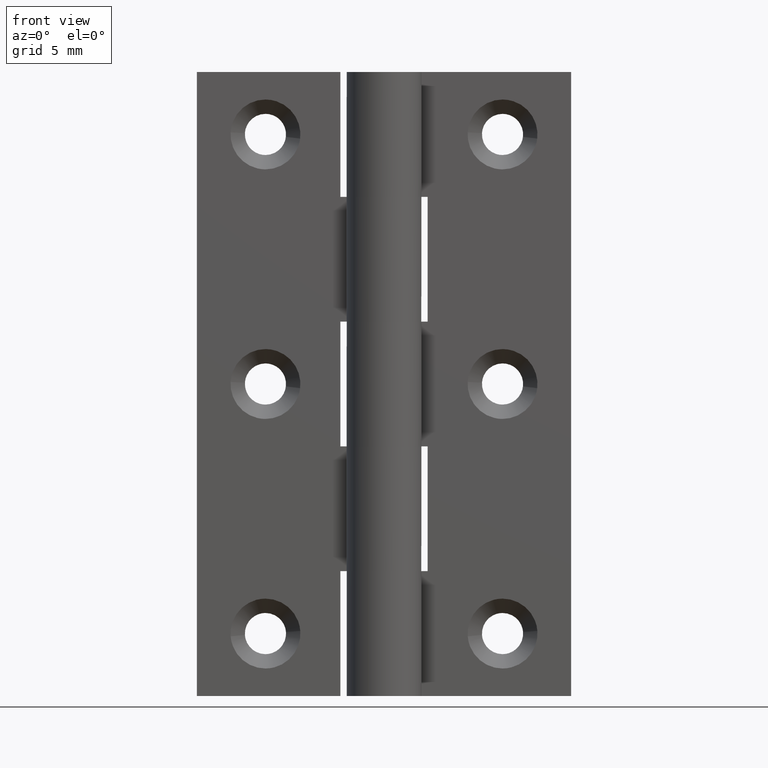
[diagram: clean part render]
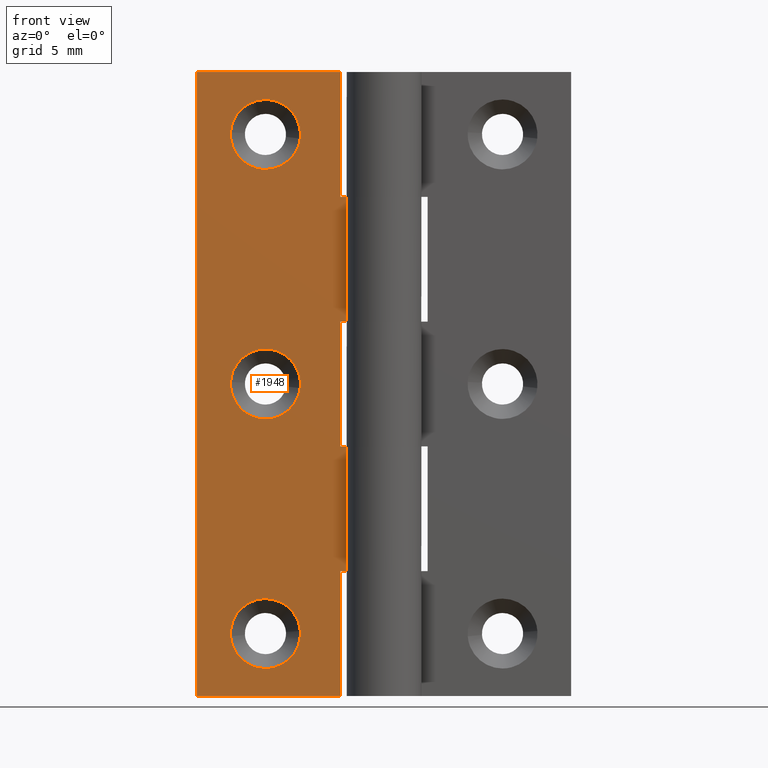
[diagram: same view with one face highlighted and labeled with its STEP entity id]
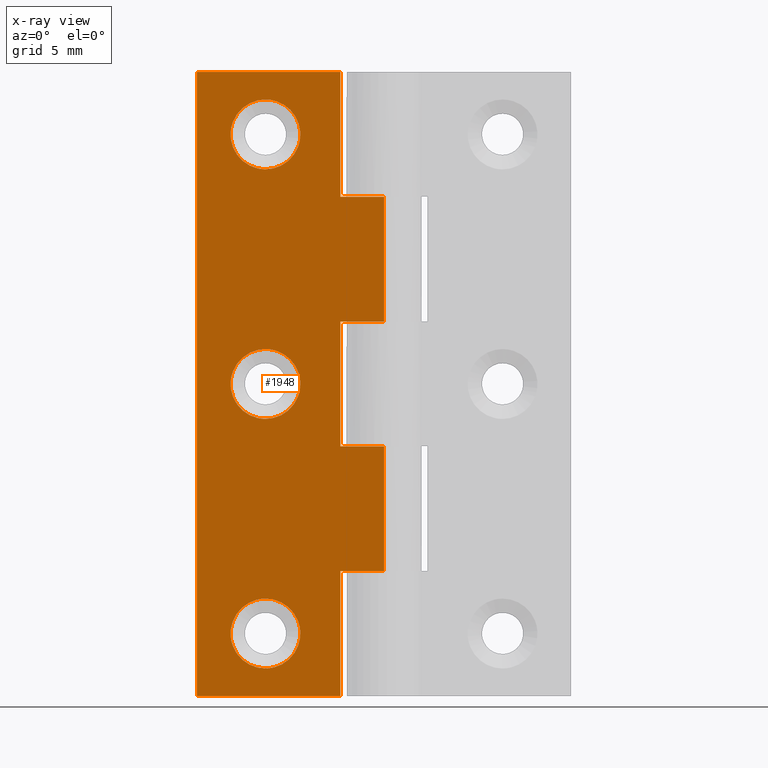
[diagram: x-ray of the same camera — body ghosted, the highlighted face saturated]
A machine part, front view. The second image highlights one B-rep face of the part: STEP entity #1948.
The next image is the same camera in x-ray: the body ghosted, the highlighted face saturated — about 0% of this face is hidden behind the body in this view.
In plain terms, the highlighted face is a freeform B-spline surface patch.
Its self-contained STEP definition (entity closure, byte-faithful):
#530=CARTESIAN_POINT('',(-6.719573326180795,1.499999999984184,24.669504142834970));
#531=VERTEX_POINT('',#530);
#537=CARTESIAN_POINT('',(-9.500000000000000,1.500000000000000,27.800000000000001));
#538=VERTEX_POINT('',#537);
#539=CARTESIAN_POINT('',(-6.719573326180795,1.499999999984184,24.669504142834974));
#540=CARTESIAN_POINT('',(-6.700000000000000,1.500000000000000,24.834172464849100));
#541=CARTESIAN_POINT('',(-6.699999999999999,1.500000000000000,25.0));
#542=CARTESIAN_POINT('',(-6.700000000000000,1.500000000000000,27.800000000000004));
#543=CARTESIAN_POINT('',(-9.500000000000000,1.500000000000000,27.800000000000001));
#551=(BOUNDED_CURVE()B_SPLINE_CURVE(2,(#539,#540,#541,#542,#543),.UNSPECIFIED.,.F.,.U.)B_SPLINE_CURVE_WITH_KNOTS((3,2,3),(0.229562473500541,0.250000000000000,0.500000000000000),.UNSPECIFIED.)CURVE()GEOMETRIC_REPRESENTATION_ITEM()RATIONAL_B_SPLINE_CURVE((0.956026754158283,0.976055948315953,1.0,0.707106781186547,1.0))REPRESENTATION_ITEM(''));
#552=EDGE_CURVE('',#531,#538,#551,.T.);
#554=CARTESIAN_POINT('',(-12.294777435600221,1.499999999964778,25.170935910964008));
#555=VERTEX_POINT('',#554);
#556=CARTESIAN_POINT('',(-9.500000000000000,1.500000000000000,27.800000000000001));
#557=CARTESIAN_POINT('',(-12.133976986836901,1.500000000000000,27.800000000000008));
#558=CARTESIAN_POINT('',(-12.294777435600222,1.499999999964778,25.170935910964015));
#566=(BOUNDED_CURVE()B_SPLINE_CURVE(2,(#556,#557,#558),.UNSPECIFIED.,.F.,.U.)B_SPLINE_CURVE_WITH_KNOTS((3,3),(0.500000000000000,0.739332962209338),.UNSPECIFIED.)CURVE()GEOMETRIC_REPRESENTATION_ITEM()RATIONAL_B_SPLINE_CURVE((1.0,0.719603993321395,0.976072041603268))REPRESENTATION_ITEM(''));
#567=EDGE_CURVE('',#538,#555,#566,.T.);
#601=CARTESIAN_POINT('',(-9.500000000000000,1.500000000000000,22.199999999999999));
#602=VERTEX_POINT('',#601);
#603=CARTESIAN_POINT('',(-12.294777435600224,1.499999999964778,25.170935910964008));
#604=CARTESIAN_POINT('',(-12.300000000000004,1.500000000000000,25.085547737501052));
#605=CARTESIAN_POINT('',(-12.300000000000001,1.500000000000000,25.0));
#606=CARTESIAN_POINT('',(-12.300000000000002,1.500000000000000,22.200000000000010));
#607=CARTESIAN_POINT('',(-9.500000000000000,1.500000000000000,22.199999999999999));
#615=(BOUNDED_CURVE()B_SPLINE_CURVE(2,(#603,#604,#605,#606,#607),.UNSPECIFIED.,.F.,.U.)B_SPLINE_CURVE_WITH_KNOTS((3,2,3),(0.739332962209338,0.750000000000000,1.0),.UNSPECIFIED.)CURVE()GEOMETRIC_REPRESENTATION_ITEM()RATIONAL_B_SPLINE_CURVE((0.976072041603268,0.987502787865153,1.0,0.707106781186547,1.0))REPRESENTATION_ITEM(''));
#616=EDGE_CURVE('',#555,#602,#615,.T.);
#618=CARTESIAN_POINT('',(-9.500000000000000,1.500000000000000,22.199999999999999));
#619=CARTESIAN_POINT('',(-7.013111327559976,1.500000000000000,22.200000000000010));
#620=CARTESIAN_POINT('',(-6.719573326180796,1.499999999984183,24.669504142834981));
#628=(BOUNDED_CURVE()B_SPLINE_CURVE(2,(#618,#619,#620),.UNSPECIFIED.,.F.,.U.)B_SPLINE_CURVE_WITH_KNOTS((3,3),(0.0,0.229562473500541),.UNSPECIFIED.)CURVE()GEOMETRIC_REPRESENTATION_ITEM()RATIONAL_B_SPLINE_CURVE((1.0,0.731050832870594,0.956026754158283))REPRESENTATION_ITEM(''));
#629=EDGE_CURVE('',#602,#531,#628,.T.);
#874=CARTESIAN_POINT('',(-6.719573326180794,1.499999999984183,44.669504142834967));
#875=VERTEX_POINT('',#874);
#881=CARTESIAN_POINT('',(-9.500000000000000,1.500000000000000,47.799999999999997));
#882=VERTEX_POINT('',#881);
#883=CARTESIAN_POINT('',(-6.719573326180795,1.499999999984183,44.669504142834974));
#884=CARTESIAN_POINT('',(-6.699999999999999,1.500000000000000,44.834172464849104));
#885=CARTESIAN_POINT('',(-6.699999999999999,1.500000000000000,45.0));
#886=CARTESIAN_POINT('',(-6.700000000000000,1.500000000000000,47.799999999999997));
#887=CARTESIAN_POINT('',(-9.500000000000000,1.500000000000000,47.799999999999997));
#895=(BOUNDED_CURVE()B_SPLINE_CURVE(2,(#883,#884,#885,#886,#887),.UNSPECIFIED.,.F.,.U.)B_SPLINE_CURVE_WITH_KNOTS((3,2,3),(0.229562473500542,0.250000000000000,0.500000000000000),.UNSPECIFIED.)CURVE()GEOMETRIC_REPRESENTATION_ITEM()RATIONAL_B_SPLINE_CURVE((0.956026754158284,0.976055948315954,1.0,0.707106781186547,1.0))REPRESENTATION_ITEM(''));
#896=EDGE_CURVE('',#875,#882,#895,.T.);
#898=CARTESIAN_POINT('',(-12.294777435600221,1.499999999964778,45.170935910964012));
#899=VERTEX_POINT('',#898);
#900=CARTESIAN_POINT('',(-9.500000000000000,1.500000000000000,47.799999999999997));
#901=CARTESIAN_POINT('',(-12.133976986836901,1.500000000000000,47.800000000000018));
#902=CARTESIAN_POINT('',(-12.294777435600222,1.499999999964778,45.170935910964005));
#910=(BOUNDED_CURVE()B_SPLINE_CURVE(2,(#900,#901,#902),.UNSPECIFIED.,.F.,.U.)B_SPLINE_CURVE_WITH_KNOTS((3,3),(0.500000000000000,0.739332962209338),.UNSPECIFIED.)CURVE()GEOMETRIC_REPRESENTATION_ITEM()RATIONAL_B_SPLINE_CURVE((1.0,0.719603993321395,0.976072041603268))REPRESENTATION_ITEM(''));
#911=EDGE_CURVE('',#882,#899,#910,.T.);
#945=CARTESIAN_POINT('',(-9.500000000000000,1.500000000000000,42.200000000000003));
#946=VERTEX_POINT('',#945);
#947=CARTESIAN_POINT('',(-12.294777435600219,1.499999999964779,45.170935910964005));
#948=CARTESIAN_POINT('',(-12.300000000000001,1.500000000000000,45.085547737501045));
#949=CARTESIAN_POINT('',(-12.300000000000001,1.500000000000000,45.0));
#950=CARTESIAN_POINT('',(-12.300000000000002,1.500000000000000,42.199999999999996));
#951=CARTESIAN_POINT('',(-9.500000000000000,1.500000000000000,42.200000000000003));
#959=(BOUNDED_CURVE()B_SPLINE_CURVE(2,(#947,#948,#949,#950,#951),.UNSPECIFIED.,.F.,.U.)B_SPLINE_CURVE_WITH_KNOTS((3,2,3),(0.739332962209338,0.750000000000000,1.0),.UNSPECIFIED.)CURVE()GEOMETRIC_REPRESENTATION_ITEM()RATIONAL_B_SPLINE_CURVE((0.976072041603270,0.987502787865154,1.0,0.707106781186547,1.0))REPRESENTATION_ITEM(''));
#960=EDGE_CURVE('',#899,#946,#959,.T.);
#962=CARTESIAN_POINT('',(-9.500000000000000,1.500000000000000,42.200000000000003));
#963=CARTESIAN_POINT('',(-7.013111327559967,1.500000000000000,42.200000000000003));
#964=CARTESIAN_POINT('',(-6.719573326180794,1.499999999984184,44.669504142834981));
#972=(BOUNDED_CURVE()B_SPLINE_CURVE(2,(#962,#963,#964),.UNSPECIFIED.,.F.,.U.)B_SPLINE_CURVE_WITH_KNOTS((3,3),(0.0,0.229562473500542),.UNSPECIFIED.)CURVE()GEOMETRIC_REPRESENTATION_ITEM()RATIONAL_B_SPLINE_CURVE((1.0,0.731050832870593,0.956026754158285))REPRESENTATION_ITEM(''));
#973=EDGE_CURVE('',#946,#875,#972,.T.);
#1203=CARTESIAN_POINT('',(-6.708631465537128,1.499999999974804,5.219685468230582));
#1204=VERTEX_POINT('',#1203);
#1210=CARTESIAN_POINT('',(-9.500000000000000,1.500000000000000,7.800000000000000));
#1211=VERTEX_POINT('',#1210);
#1212=CARTESIAN_POINT('',(-9.500000000000000,1.500000000000000,7.800000000000000));
#1213=CARTESIAN_POINT('',(-6.911706623711654,1.500000000000000,7.800000000000000));
#1214=CARTESIAN_POINT('',(-6.708631465537128,1.499999999974805,5.219685468230583));
#1222=(BOUNDED_CURVE()B_SPLINE_CURVE(2,(#1212,#1213,#1214),.UNSPECIFIED.,.F.,.U.)B_SPLINE_CURVE_WITH_KNOTS((3,3),(0.0,0.236331300609352),.UNSPECIFIED.)CURVE()GEOMETRIC_REPRESENTATION_ITEM()RATIONAL_B_SPLINE_CURVE((1.0,0.723120658632629,0.969723356122949))REPRESENTATION_ITEM(''));
#1223=EDGE_CURVE('',#1211,#1204,#1222,.T.);
#1225=CARTESIAN_POINT('',(-12.291368534462871,1.499999999974805,4.780314531769419));
#1226=VERTEX_POINT('',#1225);
#1227=CARTESIAN_POINT('',(-12.291368534462871,1.499999999974804,4.780314531769419));
#1228=CARTESIAN_POINT('',(-12.300000000000006,1.500000000000000,4.889987700187003));
#1229=CARTESIAN_POINT('',(-12.300000000000001,1.500000000000000,5.0));
#1230=CARTESIAN_POINT('',(-12.300000000000002,1.500000000000000,7.799999999999999));
#1231=CARTESIAN_POINT('',(-9.500000000000000,1.500000000000000,7.800000000000000));
#1239=(BOUNDED_CURVE()B_SPLINE_CURVE(2,(#1227,#1228,#1229,#1230,#1231),.UNSPECIFIED.,.F.,.U.)B_SPLINE_CURVE_WITH_KNOTS((3,2,3),(0.736331300609352,0.750000000000000,1.0),.UNSPECIFIED.)CURVE()GEOMETRIC_REPRESENTATION_ITEM()RATIONAL_B_SPLINE_CURVE((0.969723356122950,0.983986122553918,1.0,0.707106781186547,1.0))REPRESENTATION_ITEM(''));
#1240=EDGE_CURVE('',#1226,#1211,#1239,.T.);
#1277=CARTESIAN_POINT('',(-9.500000000000000,1.500000000000000,2.200000000000000));
#1278=VERTEX_POINT('',#1277);
#1279=CARTESIAN_POINT('',(-9.500000000000000,1.500000000000000,2.200000000000000));
#1280=CARTESIAN_POINT('',(-12.088293376288345,1.500000000000000,2.200000000000000));
#1281=CARTESIAN_POINT('',(-12.291368534462869,1.499999999974804,4.780314531769419));
#1289=(BOUNDED_CURVE()B_SPLINE_CURVE(2,(#1279,#1280,#1281),.UNSPECIFIED.,.F.,.U.)B_SPLINE_CURVE_WITH_KNOTS((3,3),(0.500000000000000,0.736331300609351),.UNSPECIFIED.)CURVE()GEOMETRIC_REPRESENTATION_ITEM()RATIONAL_B_SPLINE_CURVE((1.0,0.723120658632630,0.969723356122949))REPRESENTATION_ITEM(''));
#1290=EDGE_CURVE('',#1278,#1226,#1289,.T.);
#1292=CARTESIAN_POINT('',(-6.708631465537128,1.499999999974805,5.219685468230582));
#1293=CARTESIAN_POINT('',(-6.699999999999999,1.500000000000000,5.110012299812999));
#1294=CARTESIAN_POINT('',(-6.699999999999999,1.500000000000000,5.0));
#1295=CARTESIAN_POINT('',(-6.700000000000000,1.500000000000000,2.200000000000001));
#1296=CARTESIAN_POINT('',(-9.500000000000000,1.500000000000000,2.200000000000000));
#1304=(BOUNDED_CURVE()B_SPLINE_CURVE(2,(#1292,#1293,#1294,#1295,#1296),.UNSPECIFIED.,.F.,.U.)B_SPLINE_CURVE_WITH_KNOTS((3,2,3),(0.236331300609352,0.250000000000000,0.500000000000000),.UNSPECIFIED.)CURVE()GEOMETRIC_REPRESENTATION_ITEM()RATIONAL_B_SPLINE_CURVE((0.969723356122950,0.983986122553918,1.0,0.707106781186547,1.0))REPRESENTATION_ITEM(''));
#1305=EDGE_CURVE('',#1204,#1278,#1304,.T.);
#1316=CARTESIAN_POINT('',(-3.500000000000000,1.499999999999946,50.0));
#1317=VERTEX_POINT('',#1316);
#1318=CARTESIAN_POINT('',(-3.500000000000000,1.499999999999946,40.0));
#1319=VERTEX_POINT('',#1318);
#1320=CARTESIAN_POINT('',(-3.500000000000000,1.499999999999946,50.0));
#1321=CARTESIAN_POINT('',(-3.500000000000000,1.499999999999946,40.0));
#1322=QUASI_UNIFORM_CURVE('',1,(#1320,#1321),.UNSPECIFIED.,.F.,.U.);
#1323=EDGE_CURVE('',#1317,#1319,#1322,.T.);
#1360=CARTESIAN_POINT('',(-2.940072E-015,1.500000000000000,40.0));
#1361=VERTEX_POINT('',#1360);
#1362=CARTESIAN_POINT('',(-3.500000000000000,1.499999999999946,40.0));
#1363=CARTESIAN_POINT('',(-2.940072E-015,1.500000000000000,40.0));
#1364=QUASI_UNIFORM_CURVE('',1,(#1362,#1363),.UNSPECIFIED.,.F.,.U.);
#1365=EDGE_CURVE('',#1319,#1361,#1364,.T.);
#1422=CARTESIAN_POINT('',(-3.500000000000000,1.499999999999946,30.0));
#1423=VERTEX_POINT('',#1422);
#1424=CARTESIAN_POINT('',(-3.500000000000000,1.499999999999946,20.0));
#1425=VERTEX_POINT('',#1424);
#1426=CARTESIAN_POINT('',(-3.500000000000000,1.499999999999946,30.0));
#1427=CARTESIAN_POINT('',(-3.500000000000000,1.499999999999946,20.0));
#1428=QUASI_UNIFORM_CURVE('',1,(#1426,#1427),.UNSPECIFIED.,.F.,.U.);
#1429=EDGE_CURVE('',#1423,#1425,#1428,.T.);
#1458=CARTESIAN_POINT('',(-2.940072E-015,1.500000000000000,30.0));
#1459=VERTEX_POINT('',#1458);
#1460=CARTESIAN_POINT('',(-2.940072E-015,1.500000000000000,30.0));
#1461=CARTESIAN_POINT('',(-3.500000000000000,1.499999999999946,30.0));
#1462=QUASI_UNIFORM_CURVE('',1,(#1460,#1461),.UNSPECIFIED.,.F.,.U.);
#1463=EDGE_CURVE('',#1459,#1423,#1462,.T.);
#1528=CARTESIAN_POINT('',(-2.940072E-015,1.500000000000000,20.0));
#1529=VERTEX_POINT('',#1528);
#1530=CARTESIAN_POINT('',(-3.500000000000000,1.499999999999946,20.0));
#1531=CARTESIAN_POINT('',(-2.940072E-015,1.500000000000000,20.0));
#1532=QUASI_UNIFORM_CURVE('',1,(#1530,#1531),.UNSPECIFIED.,.F.,.U.);
#1533=EDGE_CURVE('',#1425,#1529,#1532,.T.);
#1598=CARTESIAN_POINT('',(-3.500000000000000,1.499999999999946,10.0));
#1599=VERTEX_POINT('',#1598);
#1600=CARTESIAN_POINT('',(-3.500000000000000,1.500000000000000,0.0));
#1601=VERTEX_POINT('',#1600);
#1602=CARTESIAN_POINT('',(-3.500000000000000,1.499999999999946,10.0));
#1603=CARTESIAN_POINT('',(-3.500000000000000,1.500000000000000,0.0));
#1604=QUASI_UNIFORM_CURVE('',1,(#1602,#1603),.UNSPECIFIED.,.F.,.U.);
#1605=EDGE_CURVE('',#1599,#1601,#1604,.T.);
#1634=CARTESIAN_POINT('',(-2.940072E-015,1.500000000000000,10.0));
#1635=VERTEX_POINT('',#1634);
#1636=CARTESIAN_POINT('',(-2.940072E-015,1.500000000000000,10.0));
#1637=CARTESIAN_POINT('',(-3.500000000000000,1.499999999999946,10.0));
#1638=QUASI_UNIFORM_CURVE('',1,(#1636,#1637),.UNSPECIFIED.,.F.,.U.);
#1639=EDGE_CURVE('',#1635,#1599,#1638,.T.);
#1704=CARTESIAN_POINT('',(-15.0,1.500000000000000,50.0));
#1705=VERTEX_POINT('',#1704);
#1706=CARTESIAN_POINT('',(-15.0,1.500000000000000,50.0));
#1707=CARTESIAN_POINT('',(-3.500000000000000,1.499999999999946,50.0));
#1708=QUASI_UNIFORM_CURVE('',1,(#1706,#1707),.UNSPECIFIED.,.F.,.U.);
#1709=EDGE_CURVE('',#1705,#1317,#1708,.T.);
#1733=CARTESIAN_POINT('',(-15.0,1.500000000000000,0.0));
#1734=VERTEX_POINT('',#1733);
#1735=CARTESIAN_POINT('',(-15.0,1.500000000000000,0.0));
#1736=CARTESIAN_POINT('',(-3.500000000000000,1.500000000000000,0.0));
#1737=QUASI_UNIFORM_CURVE('',1,(#1735,#1736),.UNSPECIFIED.,.F.,.U.);
#1738=EDGE_CURVE('',#1734,#1601,#1737,.T.);
#1767=CARTESIAN_POINT('',(-15.0,1.500000000000000,0.0));
#1768=CARTESIAN_POINT('',(-15.0,1.500000000000000,50.0));
#1769=QUASI_UNIFORM_CURVE('',1,(#1767,#1768),.UNSPECIFIED.,.F.,.U.);
#1770=EDGE_CURVE('',#1734,#1705,#1769,.T.);
#1897=CARTESIAN_POINT('',(-2.940072E-015,1.500000000000000,30.0));
#1898=CARTESIAN_POINT('',(-2.940072E-015,1.500000000000000,40.0));
#1899=QUASI_UNIFORM_CURVE('',1,(#1897,#1898),.UNSPECIFIED.,.F.,.U.);
#1900=EDGE_CURVE('',#1459,#1361,#1899,.T.);
#1907=CARTESIAN_POINT('',(-15.749249970927091,1.500000000000000,52.497499903090286));
#1908=CARTESIAN_POINT('',(-15.749249970927091,1.500000000000000,-2.497501244194806));
#1909=CARTESIAN_POINT('',(0.749250373258438,1.500000000000000,52.497499903090301));
#1910=CARTESIAN_POINT('',(0.749250373258438,1.500000000000000,-2.497501244194806));
#1911=B_SPLINE_SURFACE_WITH_KNOTS('',1,1,((#1907,#1909),(#1908,#1910)),.UNSPECIFIED.,.F.,.F.,.U.,(2,2),(2,2),(0.0,54.995001147285109),(0.0,16.498500344185530),.UNSPECIFIED.);
#1912=ORIENTED_EDGE('',*,*,#1365,.F.);
#1913=ORIENTED_EDGE('',*,*,#1323,.F.);
#1914=ORIENTED_EDGE('',*,*,#1709,.F.);
#1915=ORIENTED_EDGE('',*,*,#1770,.F.);
#1916=ORIENTED_EDGE('',*,*,#1738,.T.);
#1917=ORIENTED_EDGE('',*,*,#1605,.F.);
#1918=ORIENTED_EDGE('',*,*,#1639,.F.);
#1919=CARTESIAN_POINT('',(-2.940072E-015,1.500000000000000,10.0));
#1920=CARTESIAN_POINT('',(-2.940072E-015,1.500000000000000,20.0));
#1921=QUASI_UNIFORM_CURVE('',1,(#1919,#1920),.UNSPECIFIED.,.F.,.U.);
#1922=EDGE_CURVE('',#1635,#1529,#1921,.T.);
#1923=ORIENTED_EDGE('',*,*,#1922,.T.);
#1924=ORIENTED_EDGE('',*,*,#1533,.F.);
#1925=ORIENTED_EDGE('',*,*,#1429,.F.);
#1926=ORIENTED_EDGE('',*,*,#1463,.F.);
#1927=ORIENTED_EDGE('',*,*,#1900,.T.);
#1928=EDGE_LOOP('',(#1912,#1913,#1914,#1915,#1916,#1917,#1918,#1923,#1924,#1925,#1926,#1927));
#1929=FACE_OUTER_BOUND('',#1928,.T.);
#1930=ORIENTED_EDGE('',*,*,#1290,.T.);
#1931=ORIENTED_EDGE('',*,*,#1240,.T.);
#1932=ORIENTED_EDGE('',*,*,#1223,.T.);
#1933=ORIENTED_EDGE('',*,*,#1305,.T.);
#1934=EDGE_LOOP('',(#1930,#1931,#1932,#1933));
#1935=FACE_BOUND('',#1934,.T.);
#1936=ORIENTED_EDGE('',*,*,#911,.F.);
#1937=ORIENTED_EDGE('',*,*,#896,.F.);
#1938=ORIENTED_EDGE('',*,*,#973,.F.);
#1939=ORIENTED_EDGE('',*,*,#960,.F.);
#1940=EDGE_LOOP('',(#1936,#1937,#1938,#1939));
#1941=FACE_BOUND('',#1940,.T.);
#1942=ORIENTED_EDGE('',*,*,#567,.F.);
#1943=ORIENTED_EDGE('',*,*,#552,.F.);
#1944=ORIENTED_EDGE('',*,*,#629,.F.);
#1945=ORIENTED_EDGE('',*,*,#616,.F.);
#1946=EDGE_LOOP('',(#1942,#1943,#1944,#1945));
#1947=FACE_BOUND('',#1946,.T.);
#1948=ADVANCED_FACE('',(#1929,#1935,#1941,#1947),#1911,.T.);